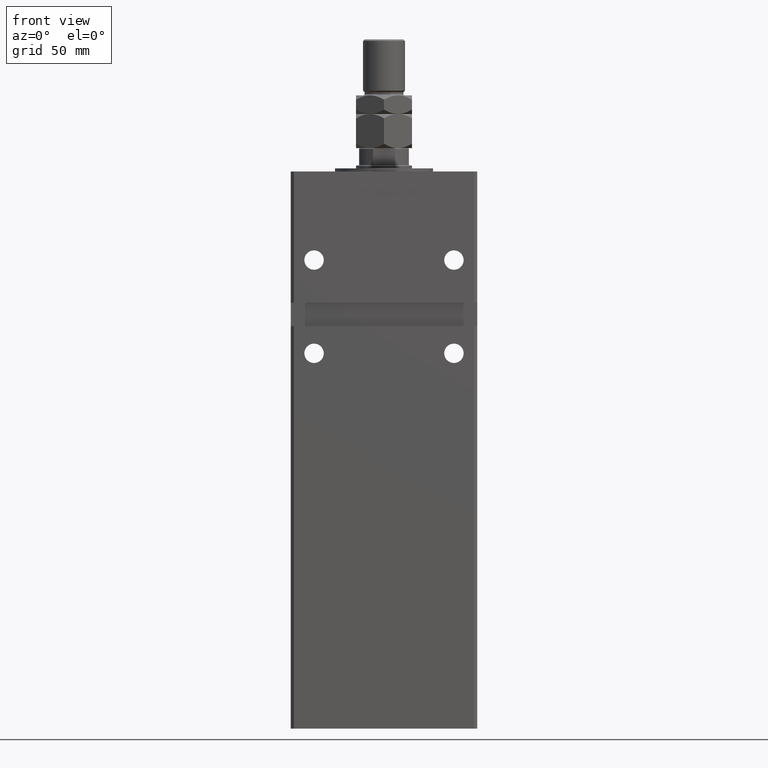
[diagram: clean part render]
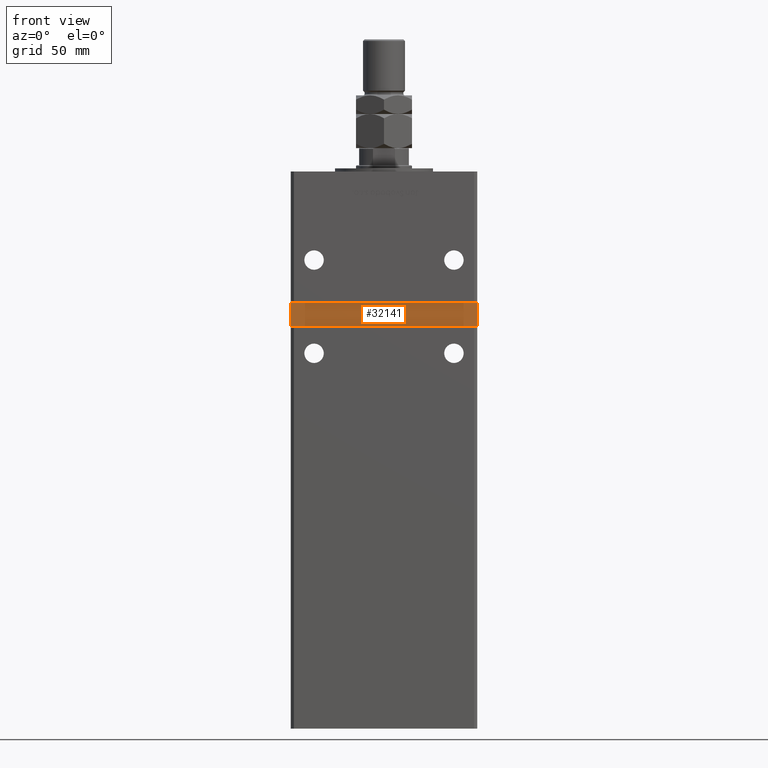
[diagram: same view with one face highlighted and labeled with its STEP entity id]
A machine part, front view. The second image highlights one B-rep face of the part: STEP entity #32141.
In plain terms, the highlighted planar face has unit normal (0, -1, 0).
Its self-contained STEP definition (entity closure, byte-faithful):
#691 = EDGE_CURVE ( 'NONE', #42777, #5831, #28931, .T. ) ;
#1057 = ORIENTED_EDGE ( 'NONE', *, *, #24440, .T. ) ;
#2611 = VECTOR ( 'NONE', #12647, 1000.000000000000000 ) ;
#3746 = CARTESIAN_POINT ( 'NONE',  ( -59.99999999999998579, -45.99999999999999289, 254.0000000000000568 ) ) ;
#5612 = LINE ( 'NONE', #26382, #53348 ) ;
#5831 = VERTEX_POINT ( 'NONE', #48094 ) ;
#6026 = CARTESIAN_POINT ( 'NONE',  ( 59.99999999999998579, -46.00000000000000000, 239.0000000000000568 ) ) ;
#7089 = VECTOR ( 'NONE', #17358, 1000.000000000000000 ) ;
#10527 = EDGE_CURVE ( 'NONE', #20184, #42777, #21530, .T. ) ;
#12647 = DIRECTION ( 'NONE',  ( -0.000000000000000000, -0.000000000000000000, 1.000000000000000000 ) ) ;
#12757 = DIRECTION ( 'NONE',  ( 0.000000000000000000, -0.000000000000000000, -1.000000000000000000 ) ) ;
#15749 = EDGE_LOOP ( 'NONE', ( #1057, #22066, #32019, #42827 ) ) ;
#17358 = DIRECTION ( 'NONE',  ( -1.000000000000000000, -0.000000000000000000, -0.000000000000000000 ) ) ;
#19793 = CARTESIAN_POINT ( 'NONE',  ( 0.000000000000000000, -45.99999999999999289, 0.000000000000000000 ) ) ;
#20184 = VERTEX_POINT ( 'NONE', #44970 ) ;
#21510 = LINE ( 'NONE', #54431, #2611 ) ;
#21530 = LINE ( 'NONE', #28823, #7089 ) ;
#22066 = ORIENTED_EDGE ( 'NONE', *, *, #10527, .T. ) ;
#23052 = DIRECTION ( 'NONE',  ( 1.000000000000000000, 0.000000000000000000, 0.000000000000000000 ) ) ;
#24440 = EDGE_CURVE ( 'NONE', #27173, #20184, #21510, .T. ) ;
#24961 = DIRECTION ( 'NONE',  ( 0.000000000000000000, -1.000000000000000000, 0.000000000000000000 ) ) ;
#26382 = CARTESIAN_POINT ( 'NONE',  ( -59.99999999999998579, -45.99999999999999289, 239.0000000000000568 ) ) ;
#27173 = VERTEX_POINT ( 'NONE', #6026 ) ;
#27248 = VECTOR ( 'NONE', #32818, 1000.000000000000000 ) ;
#28823 = CARTESIAN_POINT ( 'NONE',  ( -59.99999999999998579, -45.99999999999999289, 254.0000000000000568 ) ) ;
#28931 = LINE ( 'NONE', #3746, #27248 ) ;
#32019 = ORIENTED_EDGE ( 'NONE', *, *, #691, .T. ) ;
#32141 = ADVANCED_FACE ( 'NONE', ( #53252 ), #32245, .T. ) ;
#32245 = PLANE ( 'NONE',  #34547 ) ;
#32818 = DIRECTION ( 'NONE',  ( 0.000000000000000000, 0.000000000000000000, -1.000000000000000000 ) ) ;
#34547 = AXIS2_PLACEMENT_3D ( 'NONE', #19793, #24961, #12757 ) ;
#34766 = CARTESIAN_POINT ( 'NONE',  ( -59.99999999999998579, -45.99999999999999289, 254.0000000000000568 ) ) ;
#42777 = VERTEX_POINT ( 'NONE', #34766 ) ;
#42827 = ORIENTED_EDGE ( 'NONE', *, *, #44428, .T. ) ;
#44428 = EDGE_CURVE ( 'NONE', #5831, #27173, #5612, .T. ) ;
#44970 = CARTESIAN_POINT ( 'NONE',  ( 59.99999999999998579, -45.99999999999999289, 254.0000000000000568 ) ) ;
#48094 = CARTESIAN_POINT ( 'NONE',  ( -59.99999999999998579, -45.99999999999999289, 239.0000000000000568 ) ) ;
#53252 = FACE_OUTER_BOUND ( 'NONE', #15749, .T. ) ;
#53348 = VECTOR ( 'NONE', #23052, 1000.000000000000000 ) ;
#54431 = CARTESIAN_POINT ( 'NONE',  ( 59.99999999999998579, -45.99999999999999289, 254.0000000000000568 ) ) ;